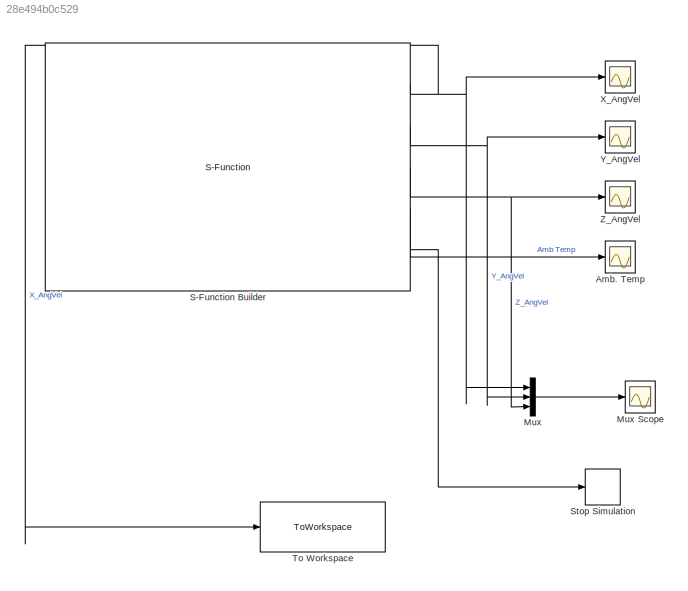
MODEL slx_28e494b0c529
KIND model
BLOCK [Scope] Amb. Temp
  DataFormat = StructureWithTime
  Floating = off
  NumInputPorts = 1
  Ports = [1]
  SampleTime = 0
  SaveName = ScopeData3
  ShowLegends = off
  YMax = 16.8
  YMin = 15.2
BLOCK [Mux] Mux
  DisplayOption = bar
  Inputs = 3
  Ports = [3, 1]
BLOCK [Scope] Mux Scope
  DataFormat = StructureWithTime
  Floating = off
  LegendLocations = 0.772     0.72054     0.11501     0.12072
  NumInputPorts = 1
  Ports = [1]
  SampleTime = 0
  SaveName = ScopeData4
  ShowLegends = on
  TimeRange = 20
  YMax = 175
  YMin = -150
BLOCK [S-Function] S-Function Builder
  CopyFcn = set_param(gcbh,'LinkStatus','none')
  EnableBusSupport = off
  FunctionName = BBB_Driver_Gyroscope_L3G4200D
  InitFcn = try, set_param(gcb,'FunctionName','BBB_Driver_Gyroscope_L3G4200D'), end
  OpenFcn = sfunctionwizard(gcbh)
  Parameters = uint8(1),uint8(104),uint8(1),uint8(1)
  Ports = [0, 5]
  PreSaveFcn = try, set_param(gcb,'FunctionName','BBB_Driver_Gyroscope_L3G4200D'), end
  SFunctionModules = BBB_Driver_Gyroscope_L3G4200D_wrapper
BLOCK [Stop] Stop Simulation
BLOCK [ToWorkspace] To Workspace
  MaxDataPoints = inf
  Ports = [1]
  SampleTime = -1
  VariableName = X_Axis_Angular_Velocity
BLOCK [Scope] X_AngVel
  DataFormat = StructureWithTime
  Floating = off
  NumInputPorts = 1
  Ports = [1]
  SampleTime = 0
  ShowLegends = off
  TimeRange = 10
  YMax = 250
  YMin = -300
BLOCK [Scope] Y_AngVel
  DataFormat = StructureWithTime
  Floating = off
  NumInputPorts = 1
  Ports = [1]
  SampleTime = 0
  SaveName = ScopeData1
  ShowLegends = off
  YMax = 300
  YMin = -300
BLOCK [Scope] Z_AngVel
  DataFormat = StructureWithTime
  Floating = off
  NumInputPorts = 1
  Ports = [1]
  SampleTime = 0
  SaveName = ScopeData2
  ShowLegends = off
  YMax = 250
  YMin = -300
LINE Mux:1 -> Mux Scope:1
NET S-Function Builder:1 -> Mux:1, To Workspace:1, X_AngVel:1
NET S-Function Builder:2 -> Mux:2, Y_AngVel:1
NET S-Function Builder:3 -> Mux:3, Z_AngVel:1
LINE S-Function Builder:4 -> Amb. Temp:1
LINE S-Function Builder:5 -> Stop Simulation:1
note: NET lines group one-source signal fan-out (src -> all destinations, sorted); 1:1 wires keep LINE
